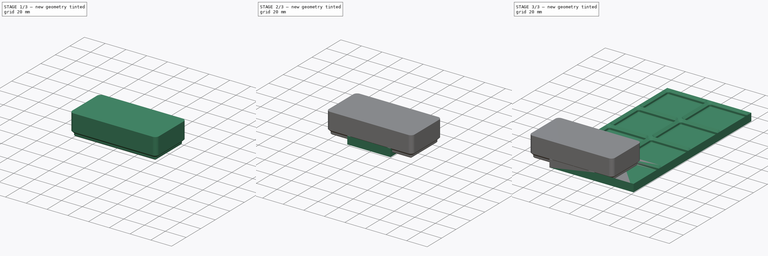
[diagram: build sequence overview — one tinted view per stage of 3, left to right]
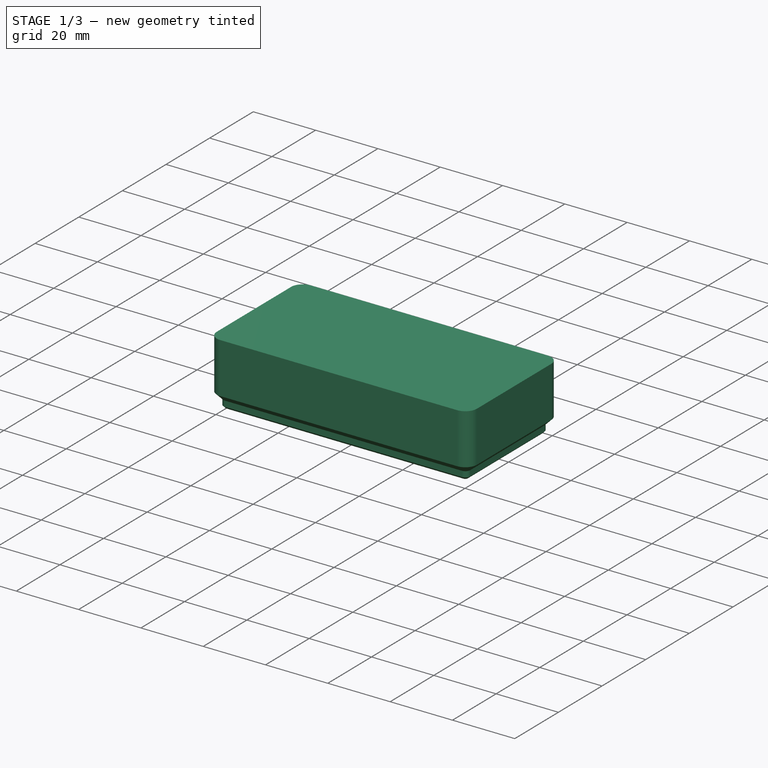
[diagram: stage 1 of 3 — iso view after this stage's code; geometry added in this stage tinted green]
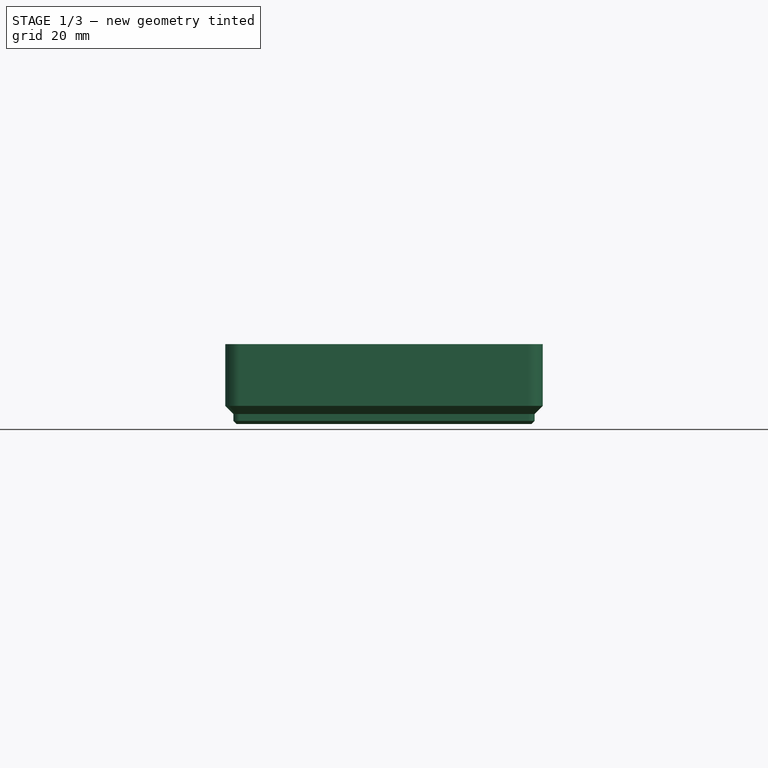
[diagram: stage 1 of 3 — front view after this stage's code; geometry added in this stage tinted green]
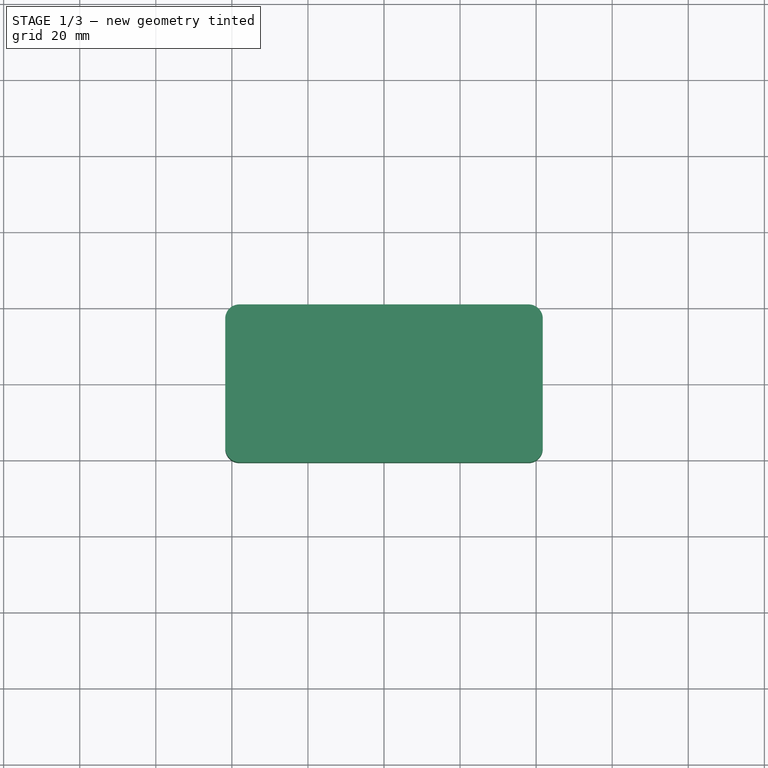
[diagram: stage 1 of 3 — top view after this stage's code; geometry added in this stage tinted green]
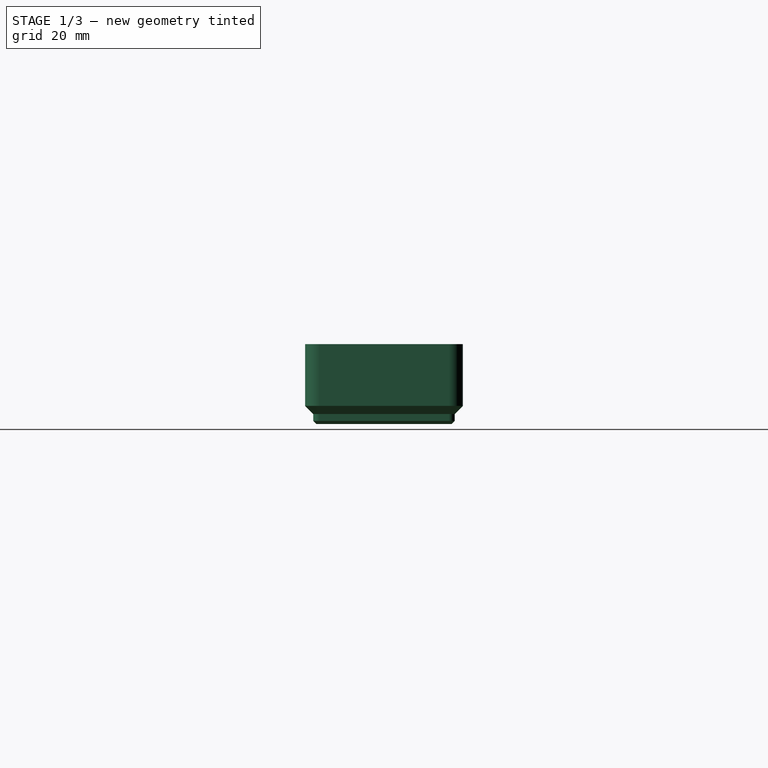
[diagram: stage 1 of 3 — right view after this stage's code; geometry added in this stage tinted green]
FCSTD DOCUMENT  (FreeCAD 1.0R38806 (Git))
Label: Opgave_3.0.0
License: All rights reserved
LicenseURL: http://en.wikipedia.org/wiki/All_rights_reserved
objects: Sketcher::SketchObject×6, PartDesign::LinearPattern×3, PartDesign::Pad×2, PartDesign::SubtractivePipe×2, PartDesign::MultiTransform×2, PartDesign::Body×2, App::VarSet×1, PartDesign::Pocket×1
note: 39 computed .brp shape members not serialized (recipe doc carries the construction recipe); baked Part::Feature solids carry a one-line shape summary decoded from their .brp

FEATURE [PartDesign::Body] Body
  AllowCompound = true
  Group = -> [VarSet,Sketch,Sketch001,Sketch002,Pad,SubtractivePipe,Sketch003,Pocket,MultiTransform,LinearPattern,LinearPattern001]
  Origin = -> Origin
  Tip = -> MultiTransform
FEATURE [Sketcher::SketchObject] Sketch004
  ArcFitTolerance = 1e-06
  AttachmentSupport = -> [XY_Plane001]
  FullyConstrained = true
  MakeInternals = false
  MapMode = 5
  expr: Constraints[19] = VarSet.Grid_Outer_Radius - VarSet.Grid_Offset / 2
  expr: Constraints[20] = VarSet.Grid_Size * VarSet.Base_Bin_Grid_X - VarSet.Grid_Offset
  expr: Constraints[21] = VarSet.Grid_Size * VarSet.Base_Bin_Grid_Y - VarSet.Grid_Offset
  sketch-geometry (10):
    g0: LineSegment StartX=-38 StartY=-20.75 StartZ=0 EndX=38 EndY=-20.75 EndZ=0
    g1: LineSegment StartX=41.75 StartY=-17 StartZ=0 EndX=41.75 EndY=17 EndZ=0
    g2: LineSegment StartX=38 StartY=20.75 StartZ=0 EndX=-38 EndY=20.75 EndZ=0
    g3: LineSegment StartX=-41.75 StartY=17 StartZ=0 EndX=-41.75 EndY=-17 EndZ=0
    g4: ArcOfCircle CenterX=-38 CenterY=-17 CenterZ=0 NormalX=0 NormalY=0 NormalZ=1 AngleXU=0 Radius=3.75 StartAngle=3.14159 EndAngle=4.71239
    g5: ArcOfCircle CenterX=38 CenterY=-17 CenterZ=0 NormalX=0 NormalY=0 NormalZ=1 AngleXU=0 Radius=3.75 StartAngle=4.71239 EndAngle=6.28319
    g6: ArcOfCircle CenterX=38 CenterY=17 CenterZ=0 NormalX=0 NormalY=0 NormalZ=1 AngleXU=0 Radius=3.75 StartAngle=1e-16 EndAngle=1.5708
    g7: ArcOfCircle CenterX=-38 CenterY=17 CenterZ=0 NormalX=0 NormalY=0 NormalZ=1 AngleXU=0 Radius=3.75 StartAngle=1.5708 EndAngle=3.14159
    g8: GeomPoint [constr] X=41.75 Y=20.75 Z=0
    g9: GeomPoint [constr] X=0 Y=0 Z=0
  constraints (22):
    c: Tangent(g0,g4) = -1.5708
    c: Tangent(g0,g5) = -1.5708
    c: Tangent(g1,g5) = -1.5708
    c: Tangent(g1,g6) = -1.5708
    c: Tangent(g2,g6) = -1.5708
    c: Tangent(g2,g7) = -1.5708
    c: Tangent(g3,g7) = -1.5708
    c: Tangent(g3,g4) = -1.5708
    c: Horizontal(g0)
    c: Horizontal(g2)
    c: Vertical(g1)
    c: Vertical(g3)
    c: Equal(g4,g5)
    c: Equal(g5,g6)
    c: Equal(g6,g7)
    c: Symmetric(g2,g0,g9)
    c: PointOnObject(g8,g1)
    c: PointOnObject(g8,g2)
    c: Coincident(g9,g-1)
    c: Radius(g4) = 3.75
    c: DistanceX(g3,g1) = 83.5
    c: DistanceY(g0,g2) = 41.5
FEATURE [PartDesign::Pad] Pad001
  Direction = (0,0,1)
  Length = 21
  Length2 = 10
  Profile = -> Sketch004
  ReferenceAxis = -> Sketch004 [N_Axis]
  Refine = true
  Suppressed = false
  Type = 0
FEATURE [Sketcher::SketchObject] Sketch005
  ArcFitTolerance = 1e-06
  AttachmentSupport = -> [XZ_Plane001]
  ExternalGeometry = -> [Sketch004]
  FullyConstrained = true
  MakeInternals = false
  MapMode = 5
  Placement = pos=(0,0,0) rot=(1,0,0;1.5708rad)
  expr: Constraints[10] = VarSet.Base_Bin_Profile_Top
  expr: Constraints[11] = VarSet.Base_Bin_Profile_Middle
  expr: Constraints[12] = VarSet.BasePlate_Profile_Angle
  expr: Constraints[9] = VarSet.Base_Bin_Profile_foot
  sketch-geometry (5):
    g0: LineSegment StartX=41.75 StartY=4.75 StartZ=0 EndX=39.6 EndY=2.6 EndZ=0
    g1: LineSegment StartX=39.6 StartY=2.6 StartZ=0 EndX=39.6 EndY=0.8 EndZ=0
    g2: LineSegment StartX=39.6 StartY=0.8 StartZ=0 EndX=38.8 EndY=0 EndZ=0
    g3: LineSegment StartX=38.8 StartY=0 StartZ=0 EndX=41.75 EndY=0 EndZ=0
    g4: LineSegment StartX=41.75 StartY=0 StartZ=0 EndX=41.75 EndY=4.75 EndZ=0
  constraints (14):
    c: Coincident(g0,g1)
    c: Vertical(g1)
    c: Coincident(g1,g2)
    c: Coincident(g2,g3)
    c: Horizontal(g3)
    c: Coincident(g3,g4)
    c: Coincident(g4,g0)
    c: Vertical(g4)
    c: Parallel(g0,g2)
    c: DistanceX(g2,g3) = 2.95
    c: DistanceY(g0,g0) = 2.15
    c: DistanceY(g1,g0) = 1.8
    c: Angle(g2,g4) = 0.785398
    c: Coincident(g3,g-3)
FEATURE [PartDesign::SubtractivePipe] SubtractivePipe001
  AuxilleryCurvelinear = true
  AuxillerySpineTangent = false
  BaseFeature = -> Pad001
  Binormal = (0,0,0)
  Mode = 0
  Profile = -> Sketch005
  Refine = true
  Spine = -> Sketch004
  SpineTangent = false
  Suppressed = false
  Transformation = 0
  Transition = 0
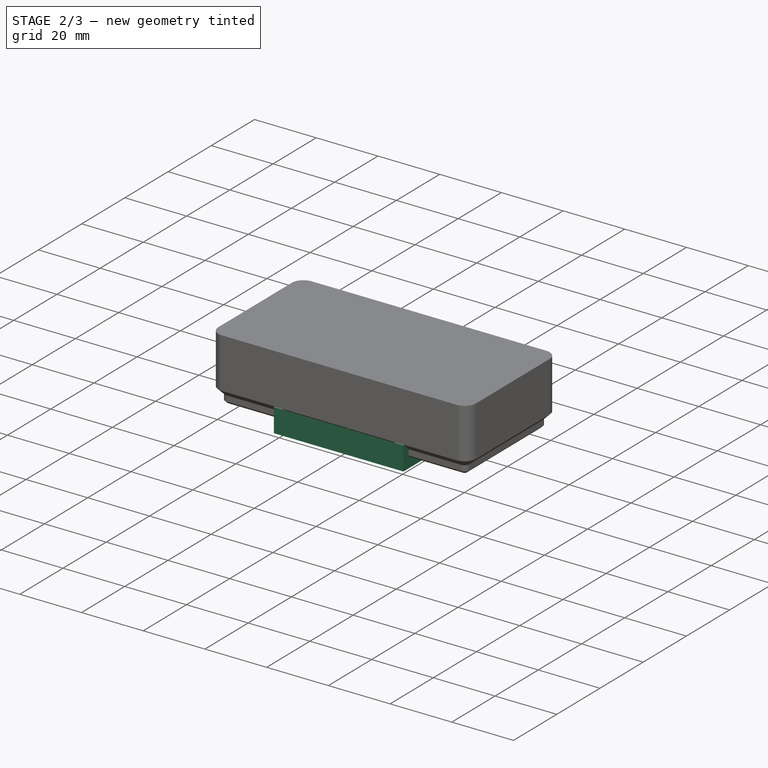
[diagram: stage 2 of 3 — iso view after this stage's code; geometry added in this stage tinted green]
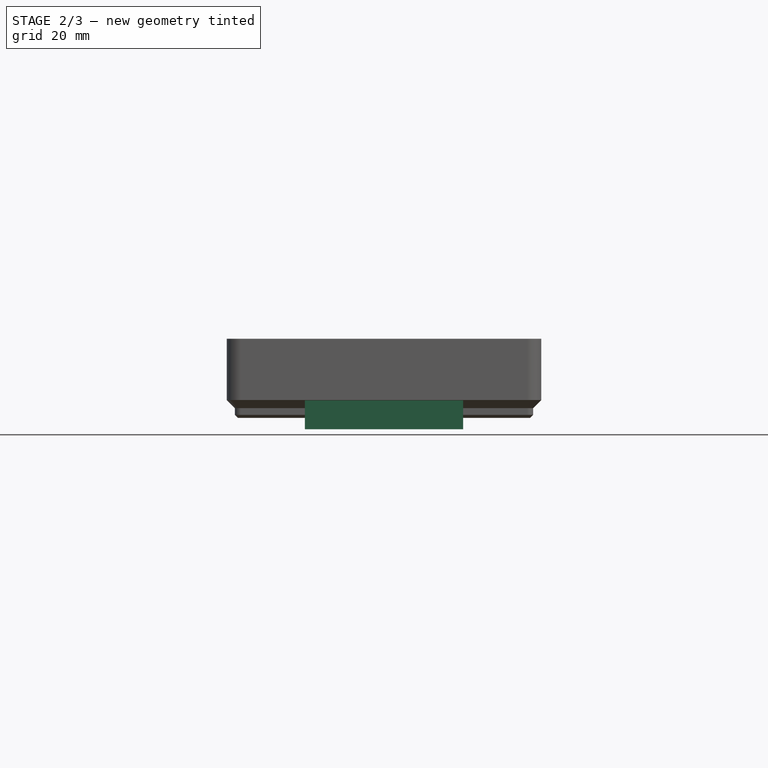
[diagram: stage 2 of 3 — front view after this stage's code; geometry added in this stage tinted green]
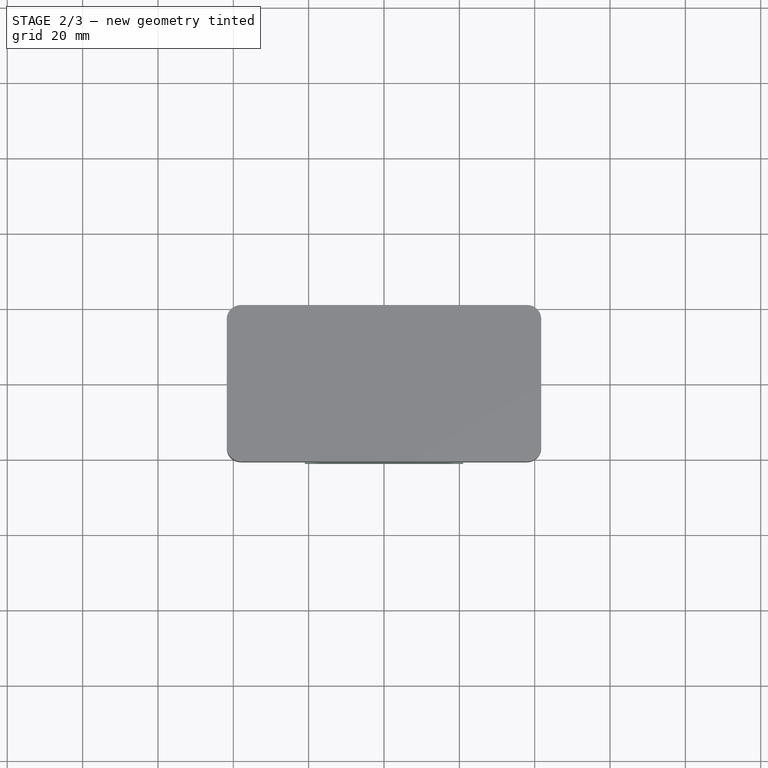
[diagram: stage 2 of 3 — top view after this stage's code; geometry added in this stage tinted green]
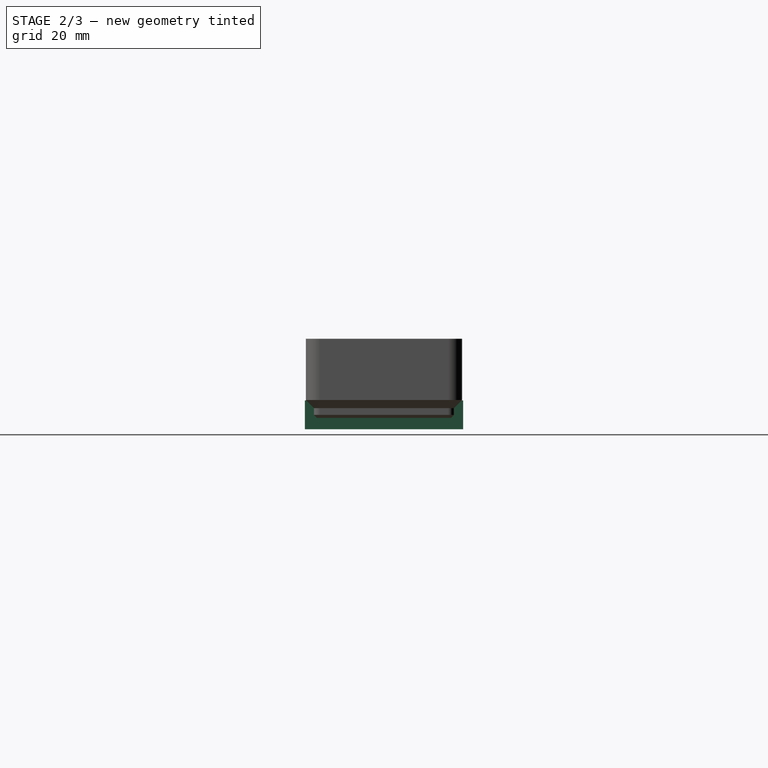
[diagram: stage 2 of 3 — right view after this stage's code; geometry added in this stage tinted green]
FEATURE [Sketcher::SketchObject] Sketch
  ArcFitTolerance = 1e-06
  AttachmentSupport = -> [XY_Plane]
  FullyConstrained = true
  MakeInternals = false
  MapMode = 5
  expr: Constraints[20] = VarSet.Grid_Outer_Radius
  expr: Constraints[21] = VarSet.Grid_Size
  sketch-geometry (10):
    g0: LineSegment StartX=-17 StartY=-21 StartZ=0 EndX=17 EndY=-21 EndZ=0
    g1: LineSegment StartX=21 StartY=-17 StartZ=0 EndX=21 EndY=17 EndZ=0
    g2: LineSegment StartX=17 StartY=21 StartZ=0 EndX=-17 EndY=21 EndZ=0
    g3: LineSegment StartX=-21 StartY=17 StartZ=0 EndX=-21 EndY=-17 EndZ=0
    g4: ArcOfCircle CenterX=-17 CenterY=-17 CenterZ=0 NormalX=0 NormalY=0 NormalZ=1 AngleXU=0 Radius=4 StartAngle=3.14159 EndAngle=4.71239
    g5: ArcOfCircle CenterX=17 CenterY=-17 CenterZ=0 NormalX=0 NormalY=0 NormalZ=1 AngleXU=0 Radius=4 StartAngle=4.71239 EndAngle=6.28319
    g6: ArcOfCircle CenterX=17 CenterY=17 CenterZ=0 NormalX=0 NormalY=0 NormalZ=1 AngleXU=0 Radius=4 StartAngle=0 EndAngle=1.5708
    g7: ArcOfCircle CenterX=-17 CenterY=17 CenterZ=0 NormalX=0 NormalY=0 NormalZ=1 AngleXU=0 Radius=4 StartAngle=1.5708 EndAngle=3.14159
    g8: GeomPoint [constr] X=21 Y=21 Z=0
    g9: GeomPoint [constr] X=0 Y=0 Z=0
  constraints (22):
    c: Tangent(g0,g4) = -1.5708
    c: Tangent(g0,g5) = -1.5708
    c: Tangent(g1,g5) = -1.5708
    c: Tangent(g1,g6) = -1.5708
    c: Tangent(g2,g6) = -1.5708
    c: Tangent(g2,g7) = -1.5708
    c: Tangent(g3,g7) = -1.5708
    c: Tangent(g3,g4) = -1.5708
    c: Horizontal(g0)
    c: Horizontal(g2)
    c: Vertical(g1)
    c: Vertical(g3)
    c: Equal(g4,g5)
    c: Equal(g5,g6)
    c: Equal(g6,g7)
    c: Symmetric(g2,g0,g9)
    c: PointOnObject(g8,g1)
    c: PointOnObject(g8,g2)
    c: Coincident(g9,g-1)
    c: Equal(g2,g3)
    c: Radius(g7) = 4
    c: DistanceX(g3,g1) = 42
FEATURE [App::VarSet] VarSet
  BasePlate_Bottom_Height = 3
  BasePlate_Grid_X = 2
  BasePlate_Grid_y = 4
  BasePlate_Profile_Angle = 45
  BasePlate_Profile_Lower = 0.7
  BasePlate_Profile_Middle = 1.8
  BasePlate_Profile_Top = 2.15
  Base_Bin_Grid_X = 2
  Base_Bin_Grid_Y = 1
  Base_Bin_Profile_Lower = 0.8
  Base_Bin_Profile_Middle = 1.8
  Base_Bin_Profile_Top = 2.15
  Base_Bin_Profile_foot = 2.95
  Base_Grid_Inner_Radius = 1.15
  Grid_Offset = 0.5
  Grid_Outer_Radius = 4
  Grid_Size = 42
FEATURE [Sketcher::SketchObject] Sketch001
  ArcFitTolerance = 1e-06
  AttachmentSupport = -> [XZ_Plane]
  ExternalGeometry = -> [Sketch]
  FullyConstrained = true
  MakeInternals = false
  MapMode = 5
  Placement = pos=(0,0,0) rot=(1,0,0;1.5708rad)
  expr: Constraints[10] = VarSet.BasePlate_Profile_Lower
  expr: Constraints[11] = VarSet.BasePlate_Profile_Middle
  expr: Constraints[12] = VarSet.BasePlate_Profile_Top
  expr: Constraints[9] = VarSet.BasePlate_Profile_Angle
  sketch-geometry (5):
    g0: LineSegment StartX=21 StartY=4.65 StartZ=0 EndX=18.85 EndY=2.5 EndZ=0
    g1: LineSegment StartX=18.85 StartY=2.5 StartZ=0 EndX=18.85 EndY=0.7 EndZ=0
    g2: LineSegment StartX=18.85 StartY=0.7 StartZ=0 EndX=18.15 EndY=0 EndZ=0
    g3: LineSegment StartX=18.15 StartY=0 StartZ=0 EndX=18.15 EndY=4.65 EndZ=0
    g4: LineSegment StartX=18.15 StartY=4.65 StartZ=0 EndX=21 EndY=4.65 EndZ=0
  constraints (15):
    c: Coincident(g0,g1)
    c: Vertical(g1)
    c: Coincident(g1,g2)
    c: Coincident(g2,g3)
    c: Vertical(g3)
    c: Coincident(g3,g4)
    c: Coincident(g4,g0)
    c: Horizontal(g4)
    c: Parallel(g0,g2)
    c: Angle(g4,g0) = 0.785398
    c: DistanceY(g2,g1) = 0.7
    c: DistanceY(g1,g0) = 1.8
    c: DistanceY(g0,g0) = 2.15
    c: Vertical(g0,g-3)
    c: Horizontal(g2,g-3)
FEATURE [Sketcher::SketchObject] Sketch002
  ArcFitTolerance = 1e-06
  AttachmentSupport = -> [XY_Plane]
  ExternalGeometry = -> [Sketch]
  FullyConstrained = true
  MakeInternals = false
  MapMode = 5
  sketch-geometry (5):
    g0: LineSegment StartX=-21 StartY=-21 StartZ=0 EndX=21 EndY=-21 EndZ=0
    g1: LineSegment StartX=21 StartY=-21 StartZ=0 EndX=21 EndY=21 EndZ=0
    g2: LineSegment StartX=21 StartY=21 StartZ=0 EndX=-21 EndY=21 EndZ=0
    g3: LineSegment StartX=-21 StartY=21 StartZ=0 EndX=-21 EndY=-21 EndZ=0
    g4: GeomPoint [constr] X=0 Y=0 Z=0
  constraints (12):
    c: Coincident(g0,g1)
    c: Coincident(g1,g2)
    c: Coincident(g2,g3)
    c: Coincident(g3,g0)
    c: Horizontal(g0)
    c: Horizontal(g2)
    c: Vertical(g1)
    c: Vertical(g3)
    c: Symmetric(g2,g0,g4)
    c: Coincident(g4,g-1)
    c: Equal(g2,g1)
    c: Horizontal(g-3,g1)
FEATURE [PartDesign::Pad] Pad
  Direction = (0,0,1)
  Length = 4.65
  Length2 = 3
  Profile = -> Sketch002
  ReferenceAxis = -> Sketch002 [N_Axis]
  Refine = true
  Suppressed = false
  Type = 4
  expr: Length = VarSet.BasePlate_Profile_Lower + VarSet.BasePlate_Profile_Middle + VarSet.BasePlate_Profile_Top
  expr: Length2 = VarSet.BasePlate_Bottom_Height
FEATURE [PartDesign::SubtractivePipe] SubtractivePipe
  AuxilleryCurvelinear = true
  AuxillerySpineTangent = false
  BaseFeature = -> Pad
  Binormal = (0,0,0)
  Mode = 0
  Profile = -> Sketch001
  Refine = true
  Spine = -> Sketch
  SpineTangent = false
  Suppressed = false
  Transformation = 0
  Transition = 0
FEATURE [PartDesign::LinearPattern] LinearPattern002
  Direction = -> X_Axis001
  Length = 42
  Mode = 1
  Occurrences = 2
  Offset = 42
  Refine = true
  Suppressed = false
  TransformMode = 0
  expr: Occurrences = VarSet.Base_Bin_Grid_X
  expr: Offset = VarSet.Grid_Size
FEATURE [PartDesign::MultiTransform] MultiTransform001
  BaseFeature = -> SubtractivePipe001
  Originals = -> [SubtractivePipe001]
  Refine = true
  Suppressed = false
  TransformMode = 0
  Transformations = -> [LinearPattern002]
FEATURE [PartDesign::Body] Body001  label="Bin"
  AllowCompound = true
  Group = -> [Sketch004,Pad001,Sketch005,SubtractivePipe001,MultiTransform001,LinearPattern002]
  Origin = -> Origin001
  Tip = -> MultiTransform001
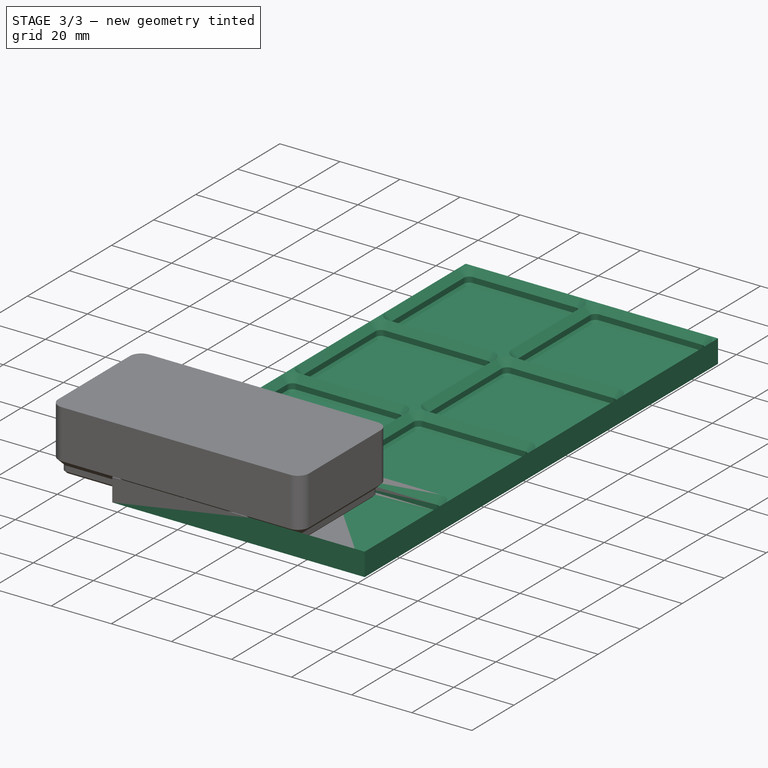
[diagram: stage 3 of 3 — iso view after this stage's code; geometry added in this stage tinted green]
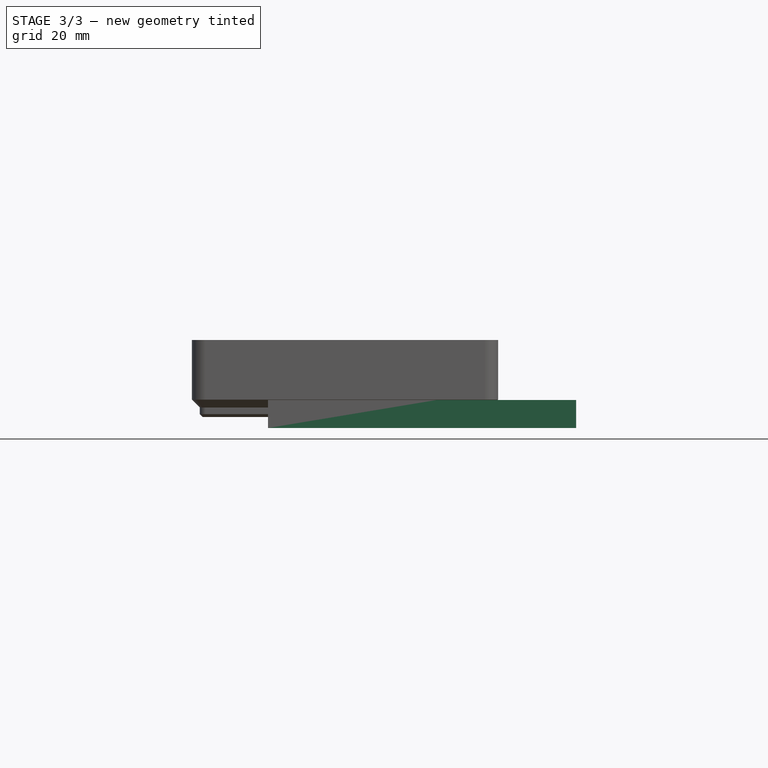
[diagram: stage 3 of 3 — front view after this stage's code; geometry added in this stage tinted green]
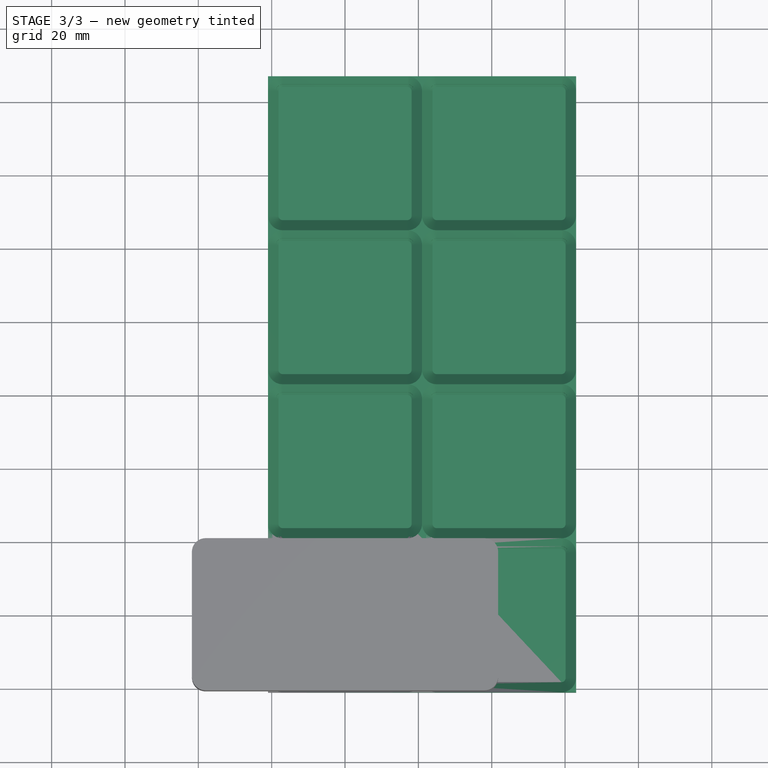
[diagram: stage 3 of 3 — top view after this stage's code; geometry added in this stage tinted green]
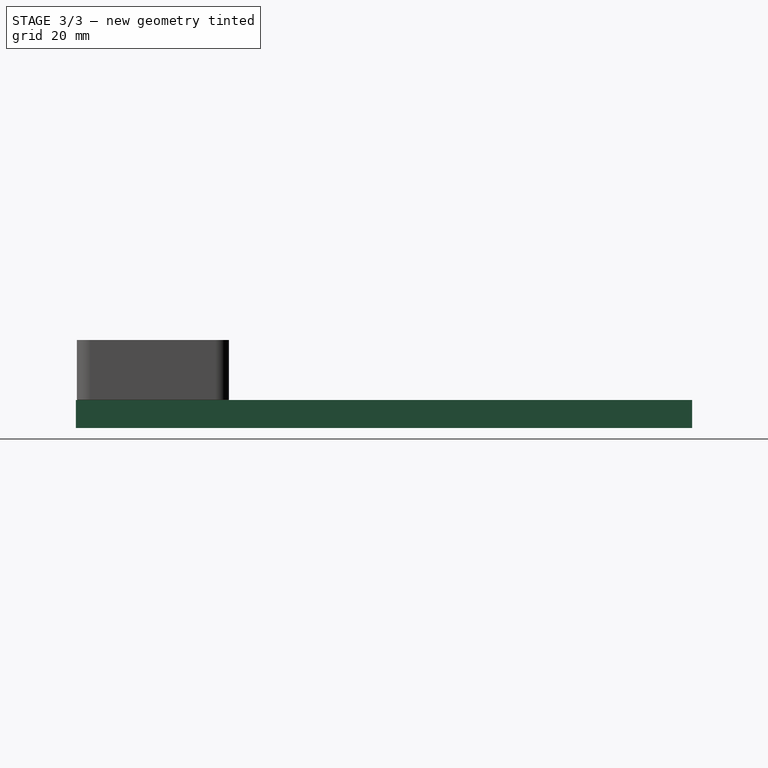
[diagram: stage 3 of 3 — right view after this stage's code; geometry added in this stage tinted green]
FEATURE [Sketcher::SketchObject] Sketch003
  ArcFitTolerance = 1e-06
  AttachmentSupport = -> [XY_Plane]
  ExternalGeometry = -> [Sketch]
  FullyConstrained = true
  MakeInternals = false
  MapMode = 5
  expr: Constraints[19] = VarSet.Base_Grid_Inner_Radius
  sketch-geometry (10):
    g0: LineSegment StartX=-17 StartY=-18.15 StartZ=0 EndX=17 EndY=-18.15 EndZ=0
    g1: LineSegment StartX=18.15 StartY=-17 StartZ=0 EndX=18.15 EndY=17 EndZ=0
    g2: LineSegment StartX=17 StartY=18.15 StartZ=0 EndX=-17 EndY=18.15 EndZ=0
    g3: LineSegment StartX=-18.15 StartY=17 StartZ=0 EndX=-18.15 EndY=-17 EndZ=0
    g4: ArcOfCircle CenterX=-17 CenterY=-17 CenterZ=0 NormalX=0 NormalY=0 NormalZ=1 AngleXU=0 Radius=1.15 StartAngle=3.14159 EndAngle=4.71239
    g5: ArcOfCircle CenterX=17 CenterY=-17 CenterZ=0 NormalX=0 NormalY=0 NormalZ=1 AngleXU=0 Radius=1.15 StartAngle=4.71239 EndAngle=6.28319
    g6: ArcOfCircle CenterX=17 CenterY=17 CenterZ=0 NormalX=0 NormalY=0 NormalZ=1 AngleXU=0 Radius=1.15 StartAngle=-9e-16 EndAngle=1.5708
    g7: ArcOfCircle CenterX=-17 CenterY=17 CenterZ=0 NormalX=0 NormalY=0 NormalZ=1 AngleXU=0 Radius=1.15 StartAngle=1.5708 EndAngle=3.14159
    g8: GeomPoint [constr] X=18.15 Y=18.15 Z=0
    g9: GeomPoint [constr] X=0 Y=0 Z=0
  constraints (21):
    c: Tangent(g0,g4) = -1.5708
    c: Tangent(g0,g5) = -1.5708
    c: Tangent(g1,g5) = -1.5708
    c: Tangent(g1,g6) = -1.5708
    c: Tangent(g2,g6) = -1.5708
    c: Tangent(g2,g7) = -1.5708
    c: Tangent(g3,g7) = -1.5708
    c: Tangent(g3,g4) = -1.5708
    c: Horizontal(g0)
    c: Horizontal(g2)
    c: Vertical(g1)
    c: Vertical(g3)
    c: Equal(g4,g5)
    c: Equal(g5,g6)
    c: Equal(g6,g7)
    c: Symmetric(g2,g0,g9)
    c: PointOnObject(g8,g1)
    c: PointOnObject(g8,g2)
    c: Coincident(g9,g-1)
    c: Radius(g7) = 1.15
    c: Coincident(g7,g-3)
FEATURE [PartDesign::Pocket] Pocket
  BaseFeature = -> SubtractivePipe
  Direction = (0,0,-1)
  Length = 5
  Length2 = 5
  Profile = -> Sketch003
  ReferenceAxis = -> Sketch003 [N_Axis]
  Refine = true
  Reversed = true
  Suppressed = false
  Type = 0
FEATURE [PartDesign::LinearPattern] LinearPattern
  Direction = -> X_Axis
  Length = 42
  Mode = 1
  Occurrences = 2
  Offset = 42
  Refine = true
  Suppressed = false
  TransformMode = 0
  expr: Occurrences = VarSet.BasePlate_Grid_X
  expr: Offset = VarSet.Grid_Size
FEATURE [PartDesign::LinearPattern] LinearPattern001
  Direction = -> Y_Axis
  Length = 126
  Mode = 1
  Occurrences = 4
  Offset = 42
  Refine = true
  Suppressed = false
  TransformMode = 0
  expr: Occurrences = VarSet.BasePlate_Grid_y
  expr: Offset = VarSet.Grid_Size
FEATURE [PartDesign::MultiTransform] MultiTransform
  BaseFeature = -> Pocket
  Originals = -> [Pad,SubtractivePipe,Pocket]
  Refine = true
  Suppressed = false
  TransformMode = 0
  Transformations = -> [LinearPattern,LinearPattern001]
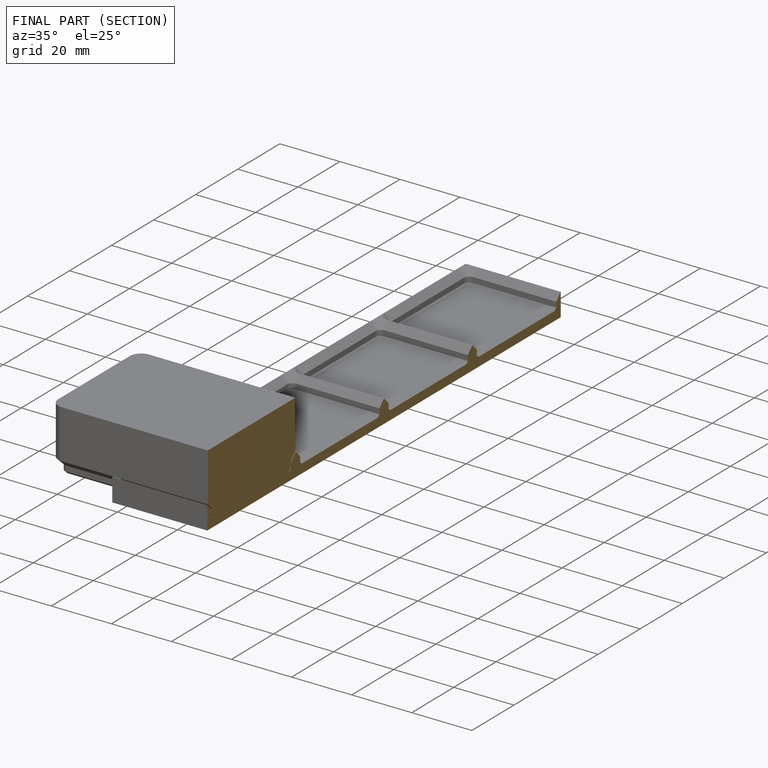
[diagram: finished part — half-section view (interior)]
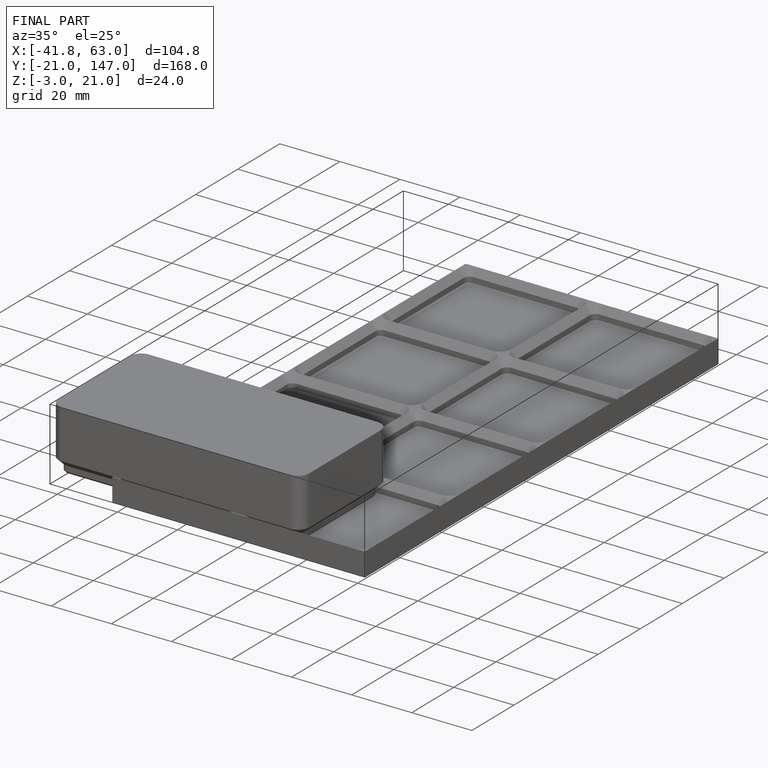
[diagram: finished part — iso view with bounding-box wireframe]
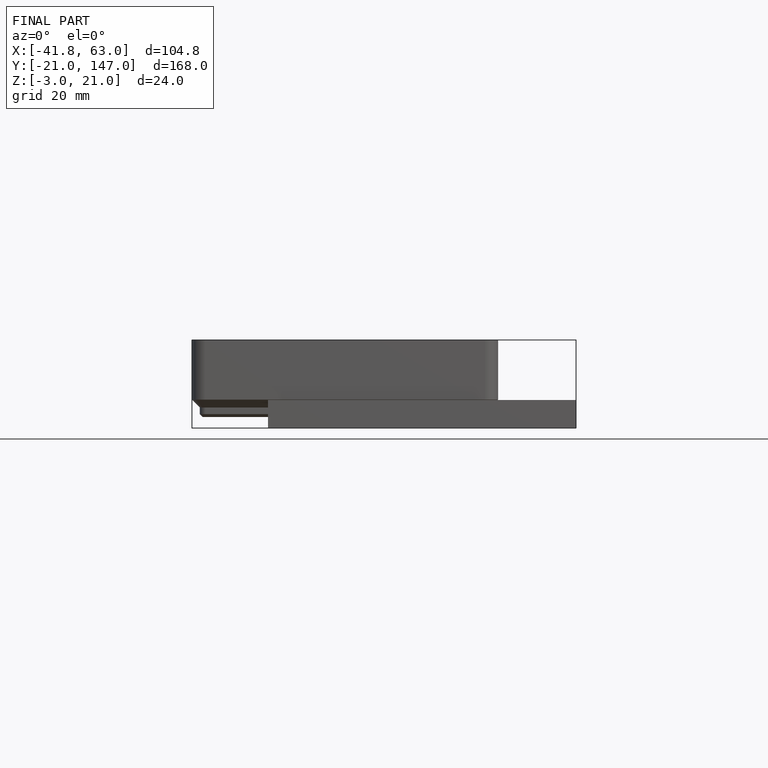
[diagram: finished part — front view with bounding-box wireframe]
